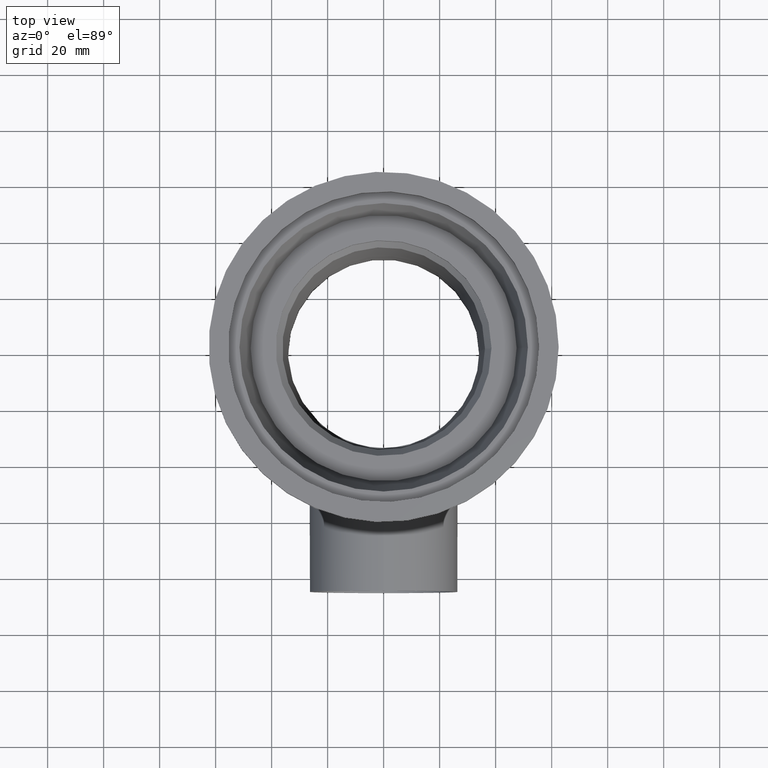
[diagram: clean part render]
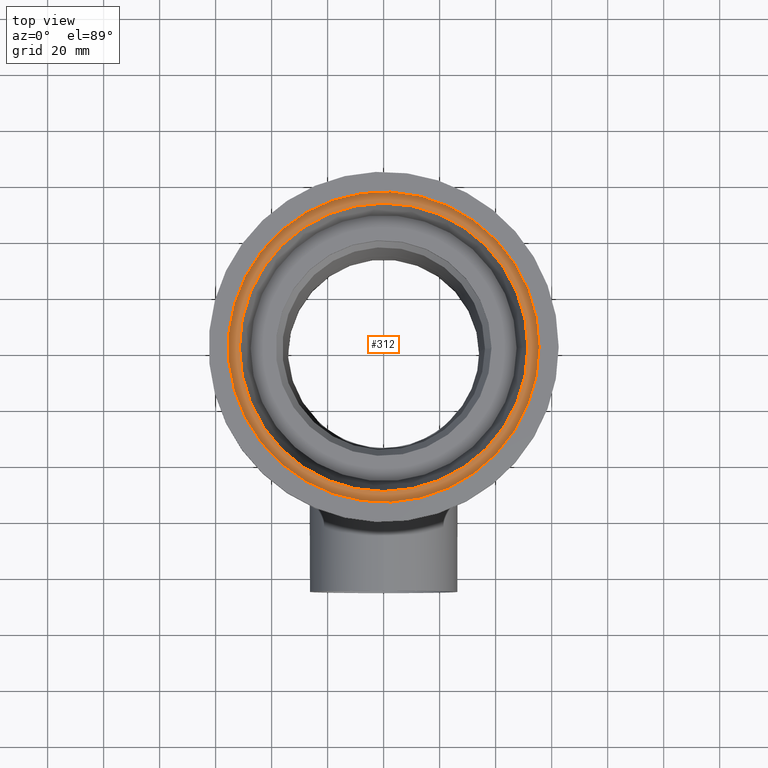
[diagram: same view with one face highlighted and labeled with its STEP entity id]
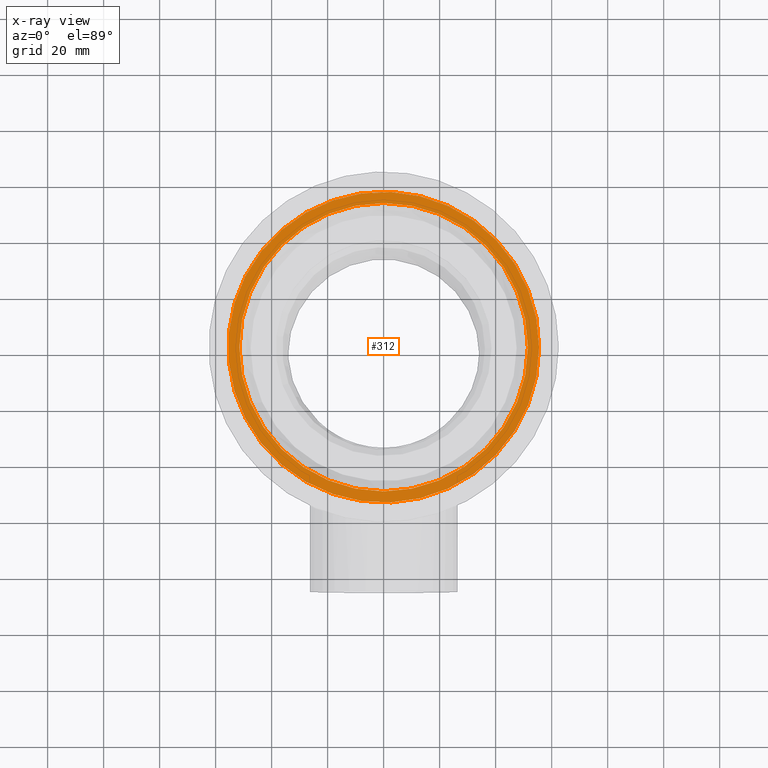
[diagram: x-ray of the same camera — body ghosted, the highlighted face saturated]
A machine part, top view. The second image highlights one B-rep face of the part: STEP entity #312.
The next image is the same camera in x-ray: the body ghosted, the highlighted face saturated — about 0% of this face is hidden behind the body in this view.
In plain terms, the highlighted planar face has unit normal (0, 0, 1).
Its self-contained STEP definition (entity closure, byte-faithful):
#21=PLANE('',#363);
#46=CIRCLE('',#362,51.5);
#47=CIRCLE('',#364,55.5);
#85=ORIENTED_EDGE('',*,*,#137,.T.);
#86=ORIENTED_EDGE('',*,*,#136,.F.);
#136=EDGE_CURVE('',#164,#164,#46,.T.);
#137=EDGE_CURVE('',#165,#165,#47,.T.);
#164=VERTEX_POINT('',#634);
#165=VERTEX_POINT('',#637);
#202=EDGE_LOOP('',(#85));
#203=EDGE_LOOP('',(#86));
#256=FACE_BOUND('',#202,.T.);
#257=FACE_BOUND('',#203,.T.);
#312=ADVANCED_FACE('',(#256,#257),#21,.T.);
#362=AXIS2_PLACEMENT_3D('',#633,#436,#437);
#363=AXIS2_PLACEMENT_3D('',#635,#438,#439);
#364=AXIS2_PLACEMENT_3D('',#636,#440,#441);
#436=DIRECTION('',(0.,0.,1.));
#437=DIRECTION('',(1.,0.,0.));
#438=DIRECTION('',(0.,0.,1.));
#439=DIRECTION('',(1.,0.,0.));
#440=DIRECTION('',(0.,0.,1.));
#441=DIRECTION('',(1.,0.,0.));
#633=CARTESIAN_POINT('',(0.,0.,-11.));
#634=CARTESIAN_POINT('',(51.5,0.,-11.));
#635=CARTESIAN_POINT('',(51.5,0.,-11.));
#636=CARTESIAN_POINT('',(0.,0.,-11.));
#637=CARTESIAN_POINT('',(55.5,0.,-11.));